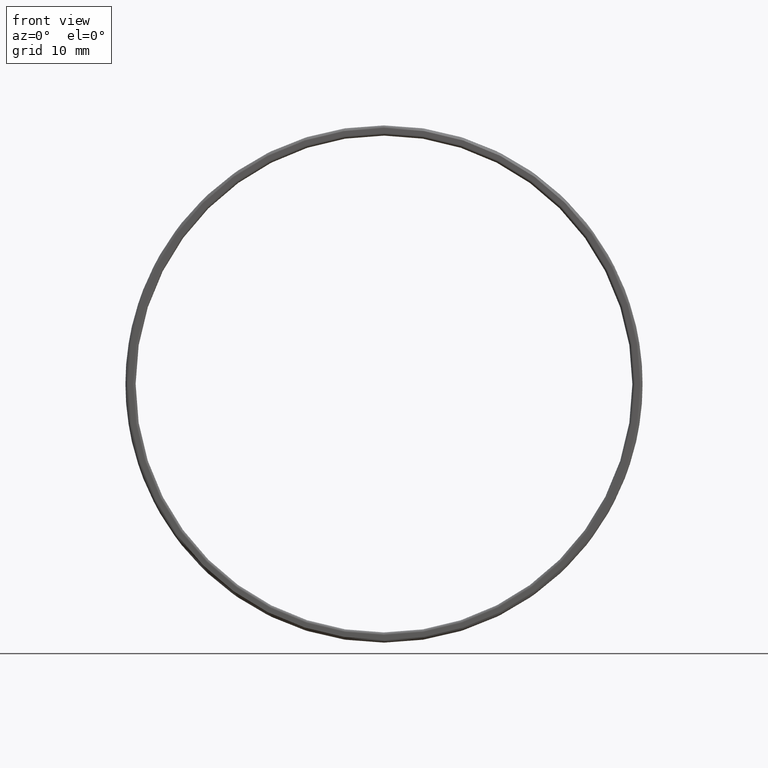
[diagram: clean part render]
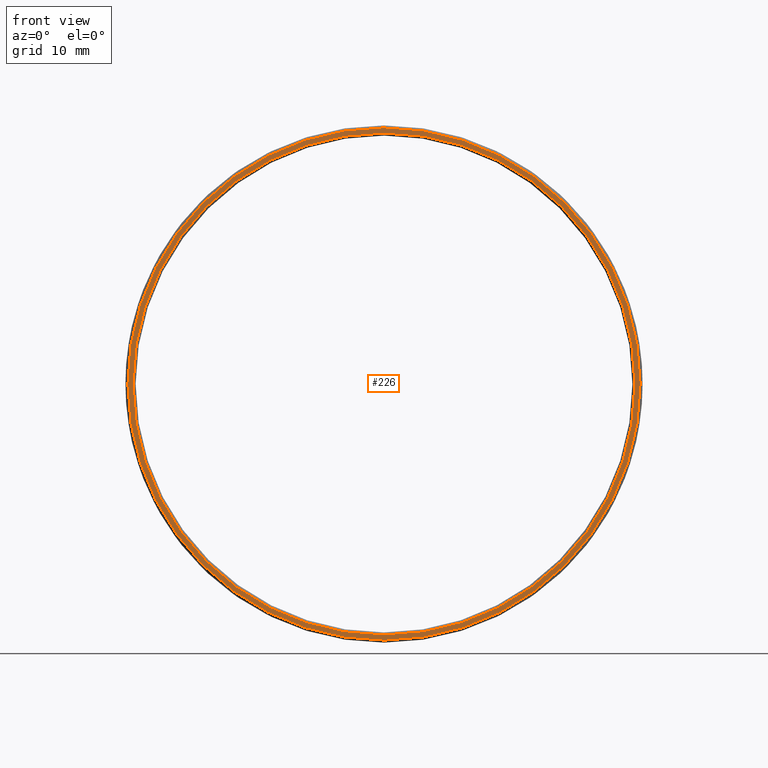
[diagram: same view with one face highlighted and labeled with its STEP entity id]
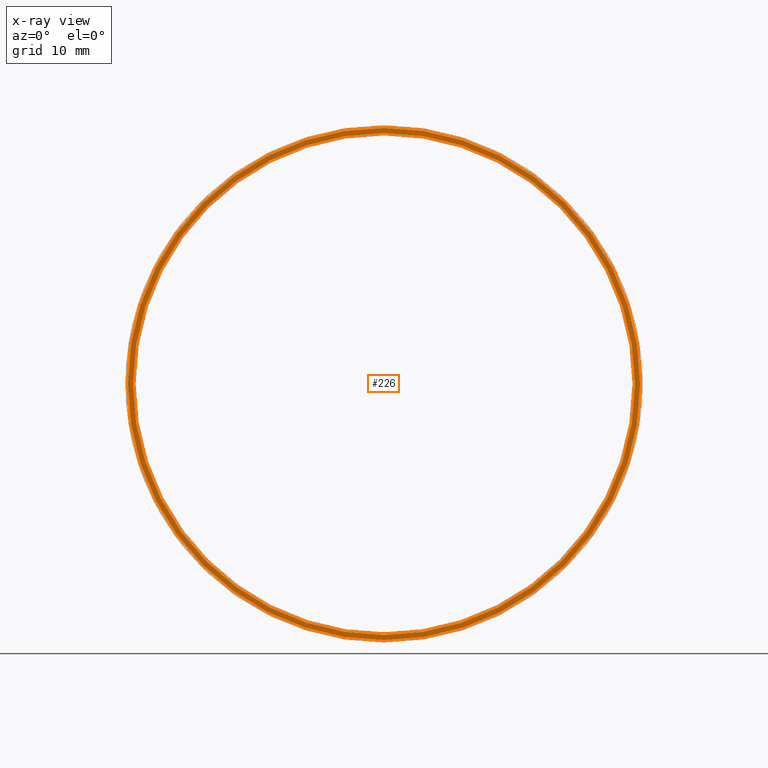
[diagram: x-ray of the same camera — body ghosted, the highlighted face saturated]
A machine part, front view. The second image highlights one B-rep face of the part: STEP entity #226.
The next image is the same camera in x-ray: the body ghosted, the highlighted face saturated — about 0% of this face is hidden behind the body in this view.
In plain terms, the highlighted planar face has unit normal (-0, 1, 0).
Its self-contained STEP definition (entity closure, byte-faithful):
#17 = PLANE ( 'NONE',  #72 ) ;
#18 = CARTESIAN_POINT ( 'NONE',  ( 0.0000000000000000000, -0.5000000000000022204, 0.0000000000000000000 ) ) ;
#20 = CIRCLE ( 'NONE', #240, 25.14999999999999858 ) ;
#27 = FACE_OUTER_BOUND ( 'NONE', #272, .T. ) ;
#30 = EDGE_LOOP ( 'NONE', ( #405, #73 ) ) ;
#39 = DIRECTION ( 'NONE',  ( -0.0000000000000000000, 1.000000000000000000, -0.0000000000000000000 ) ) ;
#40 = EDGE_CURVE ( 'NONE', #435, #252, #283, .T. ) ;
#48 = CARTESIAN_POINT ( 'NONE',  ( 24.39999999999999858, -0.5000000000000022204, 0.0000000000000000000 ) ) ;
#72 = AXIS2_PLACEMENT_3D ( 'NONE', #48, #277, #416 ) ;
#73 = ORIENTED_EDGE ( 'NONE', *, *, #157, .T. ) ;
#83 = CARTESIAN_POINT ( 'NONE',  ( 0.0000000000000000000, -0.5000000000000022204, 25.14999999999999858 ) ) ;
#88 = DIRECTION ( 'NONE',  ( 0.0000000000000000000, 0.0000000000000000000, 1.000000000000000000 ) ) ;
#97 = CARTESIAN_POINT ( 'NONE',  ( 3.095294784844934972E-15, -0.5000000000000022204, -25.14999999999999858 ) ) ;
#127 = DIRECTION ( 'NONE',  ( -0.0000000000000000000, 1.000000000000000000, -0.0000000000000000000 ) ) ;
#138 = CARTESIAN_POINT ( 'NONE',  ( 0.0000000000000000000, -0.5000000000000022204, 0.0000000000000000000 ) ) ;
#149 = CARTESIAN_POINT ( 'NONE',  ( 0.0000000000000000000, -0.5000000000000022204, 0.0000000000000000000 ) ) ;
#156 = AXIS2_PLACEMENT_3D ( 'NONE', #149, #39, #382 ) ;
#157 = EDGE_CURVE ( 'NONE', #430, #378, #330, .T. ) ;
#159 = DIRECTION ( 'NONE',  ( 0.0000000000000000000, 0.0000000000000000000, 1.000000000000000000 ) ) ;
#168 = CARTESIAN_POINT ( 'NONE',  ( 0.0000000000000000000, -0.5000000000000021094, 24.64999999999999858 ) ) ;
#172 = DIRECTION ( 'NONE',  ( 0.0000000000000000000, -1.000000000000000000, 0.0000000000000000000 ) ) ;
#179 = ORIENTED_EDGE ( 'NONE', *, *, #40, .T. ) ;
#223 = AXIS2_PLACEMENT_3D ( 'NONE', #269, #127, #88 ) ;
#226 = ADVANCED_FACE ( 'NONE', ( #343, #27 ), #17, .F. ) ;
#233 = EDGE_CURVE ( 'NONE', #252, #435, #20, .T. ) ;
#238 = CARTESIAN_POINT ( 'NONE',  ( 3.018754359898225504E-15, -0.5000000000000021094, -24.64999999999999858 ) ) ;
#240 = AXIS2_PLACEMENT_3D ( 'NONE', #18, #388, #159 ) ;
#248 = DIRECTION ( 'NONE',  ( 0.0000000000000000000, 0.0000000000000000000, 1.000000000000000000 ) ) ;
#252 = VERTEX_POINT ( 'NONE', #83 ) ;
#269 = CARTESIAN_POINT ( 'NONE',  ( 0.0000000000000000000, -0.5000000000000022204, 0.0000000000000000000 ) ) ;
#271 = EDGE_CURVE ( 'NONE', #378, #430, #329, .T. ) ;
#272 = EDGE_LOOP ( 'NONE', ( #369, #179 ) ) ;
#277 = DIRECTION ( 'NONE',  ( -0.0000000000000000000, 1.000000000000000000, 0.0000000000000000000 ) ) ;
#283 = CIRCLE ( 'NONE', #404, 25.14999999999999858 ) ;
#329 = CIRCLE ( 'NONE', #223, 24.64999999999999858 ) ;
#330 = CIRCLE ( 'NONE', #156, 24.64999999999999858 ) ;
#343 = FACE_BOUND ( 'NONE', #30, .T. ) ;
#369 = ORIENTED_EDGE ( 'NONE', *, *, #233, .T. ) ;
#378 = VERTEX_POINT ( 'NONE', #168 ) ;
#382 = DIRECTION ( 'NONE',  ( 0.0000000000000000000, 0.0000000000000000000, 1.000000000000000000 ) ) ;
#388 = DIRECTION ( 'NONE',  ( 0.0000000000000000000, -1.000000000000000000, 0.0000000000000000000 ) ) ;
#404 = AXIS2_PLACEMENT_3D ( 'NONE', #138, #172, #248 ) ;
#405 = ORIENTED_EDGE ( 'NONE', *, *, #271, .T. ) ;
#416 = DIRECTION ( 'NONE',  ( 0.0000000000000000000, 0.0000000000000000000, 1.000000000000000000 ) ) ;
#430 = VERTEX_POINT ( 'NONE', #238 ) ;
#435 = VERTEX_POINT ( 'NONE', #97 ) ;